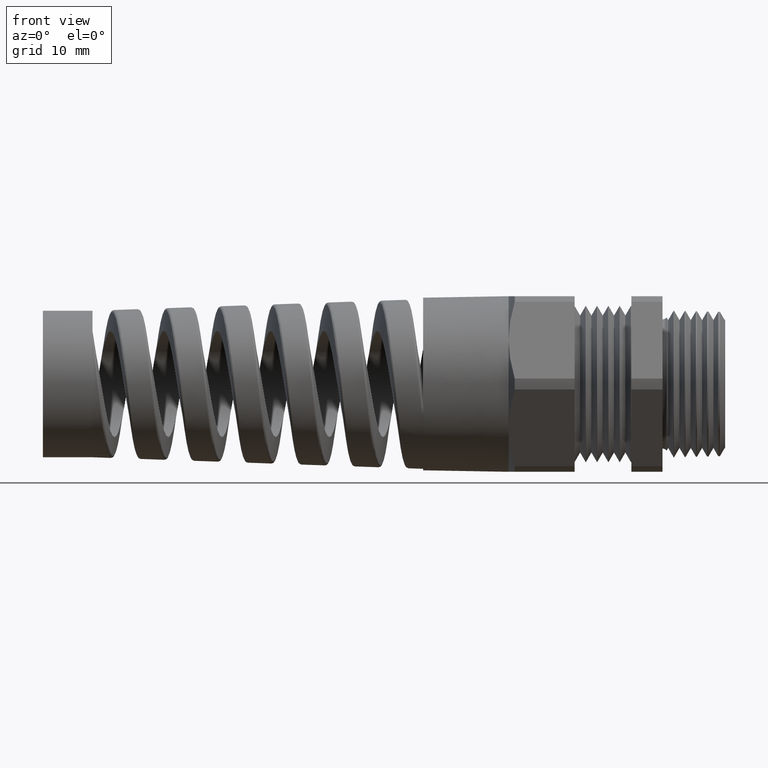
[diagram: clean part render]
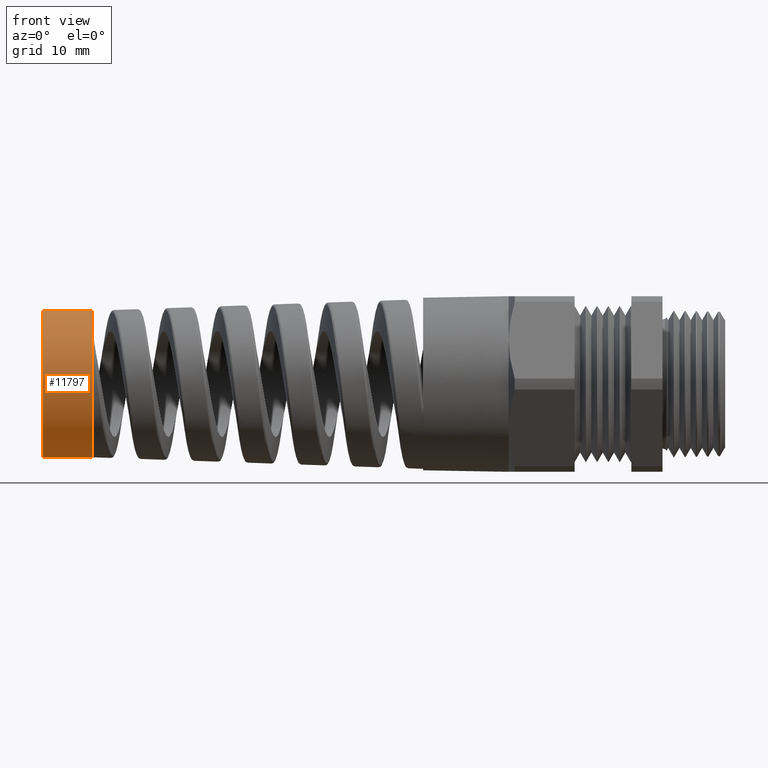
[diagram: same view with one face highlighted and labeled with its STEP entity id]
A machine part, front view. The second image highlights one B-rep face of the part: STEP entity #11797.
In plain terms, the highlighted cylindrical surface (partial cylindrical patch) has radius 9.2196 mm, axis along (1, 0, 0).
Its self-contained STEP definition (entity closure, byte-faithful):
#1194 = EDGE_CURVE ( 'NONE', #1195, #3989, #2218, .T. ) ;
#1195 = VERTEX_POINT ( 'NONE', #2207 ) ;
#2207 = CARTESIAN_POINT ( 'NONE',  ( -2.824400000000000200, -0.3014177531090881400, 0.2022328038636253500 ) ) ;
#2208 = DIRECTION ( 'NONE',  ( 0.0000000000000000000, 0.0000000000000000000, -1.000000000000000000 ) ) ;
#2209 = DIRECTION ( 'NONE',  ( 1.000000000000000000, 0.0000000000000000000, 0.0000000000000000000 ) ) ;
#2211 = CARTESIAN_POINT ( 'NONE',  ( -2.824400000000000200, 0.0000000000000000000, 0.0000000000000000000 ) ) ;
#2212 = AXIS2_PLACEMENT_3D ( 'NONE', #2211, #2209, #2208 ) ;
#2218 = CIRCLE ( 'NONE', #2212, 0.3629748873515553100 ) ;
#3989 = VERTEX_POINT ( 'NONE', #5741 ) ;
#3991 = EDGE_CURVE ( 'NONE', #4012, #3989, #5740, .T. ) ;
#4009 = VERTEX_POINT ( 'NONE', #5715 ) ;
#4012 = VERTEX_POINT ( 'NONE', #5779 ) ;
#4014 = EDGE_CURVE ( 'NONE', #4009, #4015, #5773, .T. ) ;
#4015 = VERTEX_POINT ( 'NONE', #5769 ) ;
#5218 = DIRECTION ( 'NONE',  ( 0.0000000000000000000, 0.0000000000000000000, -1.000000000000000000 ) ) ;
#5220 = DIRECTION ( 'NONE',  ( 1.000000000000000000, 0.0000000000000000000, 0.0000000000000000000 ) ) ;
#5222 = AXIS2_PLACEMENT_3D ( 'NONE', #5230, #5220, #5218 ) ;
#5223 = CYLINDRICAL_SURFACE ( 'NONE', #5222, 0.3629748873515559700 ) ;
#5230 = CARTESIAN_POINT ( 'NONE',  ( -3.069999999999999800, 0.0000000000000000000, 0.0000000000000000000 ) ) ;
#5232 = FACE_OUTER_BOUND ( 'NONE', #11798, .T. ) ;
#5715 = CARTESIAN_POINT ( 'NONE',  ( -3.069999999999999800, 4.445160339659540600E-017, 0.3629748873515559700 ) ) ;
#5737 = DIRECTION ( 'NONE',  ( 1.000000000000000000, 0.0000000000000000000, 0.0000000000000000000 ) ) ;
#5738 = VECTOR ( 'NONE', #5737, 39.37007874015748100 ) ;
#5739 = CARTESIAN_POINT ( 'NONE',  ( -3.069999999999999800, 0.0000000000000000000, -0.3629748873515559700 ) ) ;
#5740 = LINE ( 'NONE', #5739, #5738 ) ;
#5741 = CARTESIAN_POINT ( 'NONE',  ( -2.824400000000000200, 0.0000000000000000000, -0.3629748873515553100 ) ) ;
#5769 = CARTESIAN_POINT ( 'NONE',  ( -2.824400000000000200, 4.445160339659540600E-017, 0.3629748873515559700 ) ) ;
#5770 = DIRECTION ( 'NONE',  ( 1.000000000000000000, 0.0000000000000000000, 0.0000000000000000000 ) ) ;
#5771 = VECTOR ( 'NONE', #5770, 39.37007874015748100 ) ;
#5772 = CARTESIAN_POINT ( 'NONE',  ( -3.069999999999999800, 4.445160339659540600E-017, 0.3629748873515559700 ) ) ;
#5773 = LINE ( 'NONE', #5772, #5771 ) ;
#5779 = CARTESIAN_POINT ( 'NONE',  ( -3.069999999999999800, 0.0000000000000000000, -0.3629748873515559700 ) ) ;
#9704 = CIRCLE ( 'NONE', #9755, 0.3629748873515559700 ) ;
#9711 = DIRECTION ( 'NONE',  ( 0.0000000000000000000, 0.0000000000000000000, 1.000000000000000000 ) ) ;
#9712 = DIRECTION ( 'NONE',  ( -1.000000000000000000, 0.0000000000000000000, 0.0000000000000000000 ) ) ;
#9713 = CARTESIAN_POINT ( 'NONE',  ( -3.069999999999999800, 0.0000000000000000000, 0.0000000000000000000 ) ) ;
#9714 = AXIS2_PLACEMENT_3D ( 'NONE', #9713, #9712, #9711 ) ;
#9719 = CIRCLE ( 'NONE', #9714, 0.3629748873515559700 ) ;
#9738 = DIRECTION ( 'NONE',  ( 0.0000000000000000000, 0.0000000000000000000, 1.000000000000000000 ) ) ;
#9753 = DIRECTION ( 'NONE',  ( -1.000000000000000000, 0.0000000000000000000, 0.0000000000000000000 ) ) ;
#9754 = CARTESIAN_POINT ( 'NONE',  ( -2.824400000000000200, 0.0000000000000000000, 0.0000000000000000000 ) ) ;
#9755 = AXIS2_PLACEMENT_3D ( 'NONE', #9754, #9753, #9738 ) ;
#11786 = ORIENTED_EDGE ( 'NONE', *, *, #11842, .T. ) ;
#11797 = ADVANCED_FACE ( 'NONE', ( #5232 ), #5223, .T. ) ;
#11798 = EDGE_LOOP ( 'NONE', ( #11835, #11804, #11824, #11820, #11786 ) ) ;
#11804 = ORIENTED_EDGE ( 'NONE', *, *, #11823, .F. ) ;
#11820 = ORIENTED_EDGE ( 'NONE', *, *, #1194, .F. ) ;
#11823 = EDGE_CURVE ( 'NONE', #4012, #4009, #9719, .T. ) ;
#11824 = ORIENTED_EDGE ( 'NONE', *, *, #3991, .T. ) ;
#11835 = ORIENTED_EDGE ( 'NONE', *, *, #4014, .F. ) ;
#11842 = EDGE_CURVE ( 'NONE', #1195, #4015, #9704, .T. ) ;